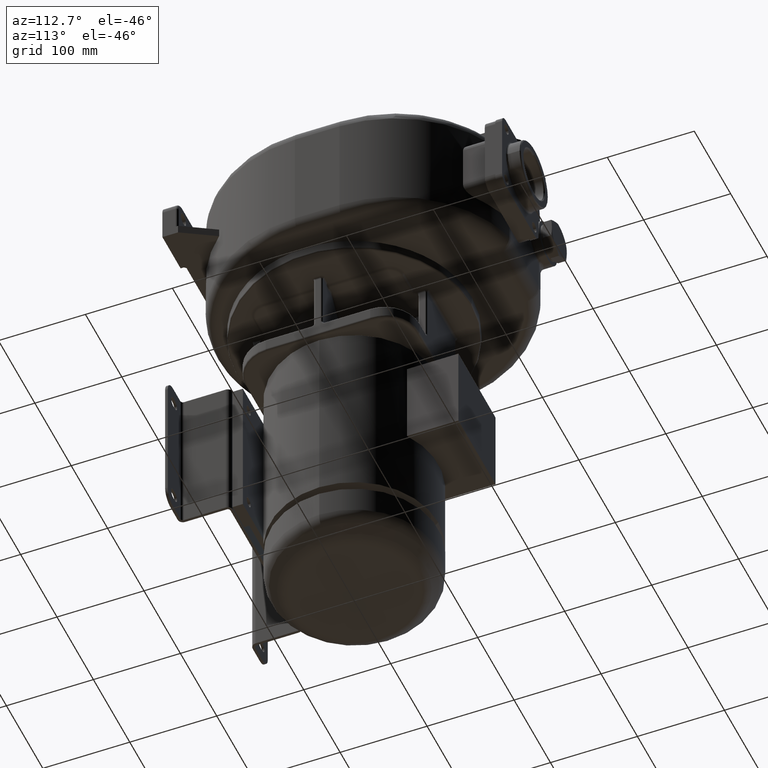
[diagram: clean part render]
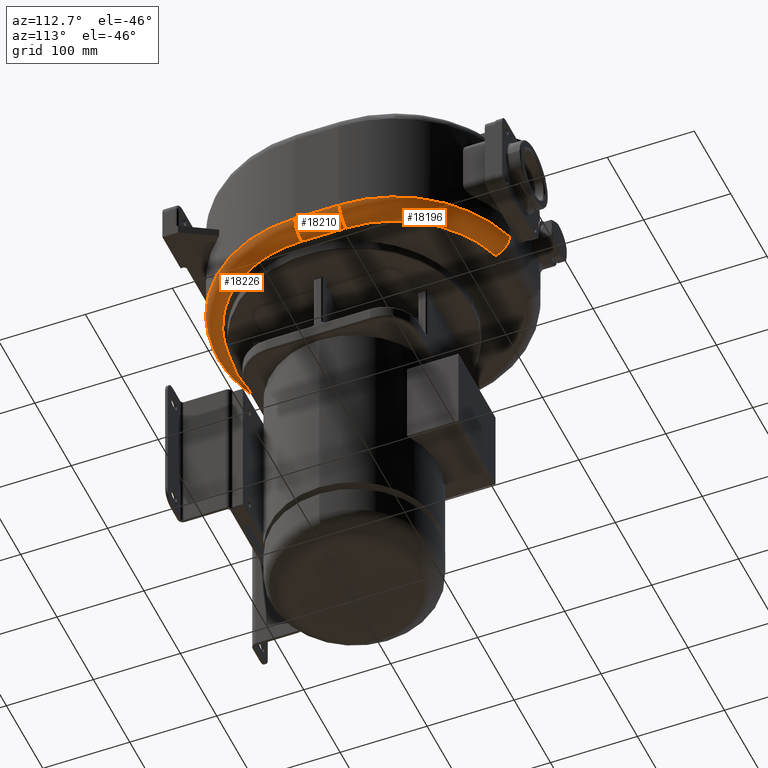
[diagram: same view with one multi-face feature highlighted, each face labeled with its STEP entity id]
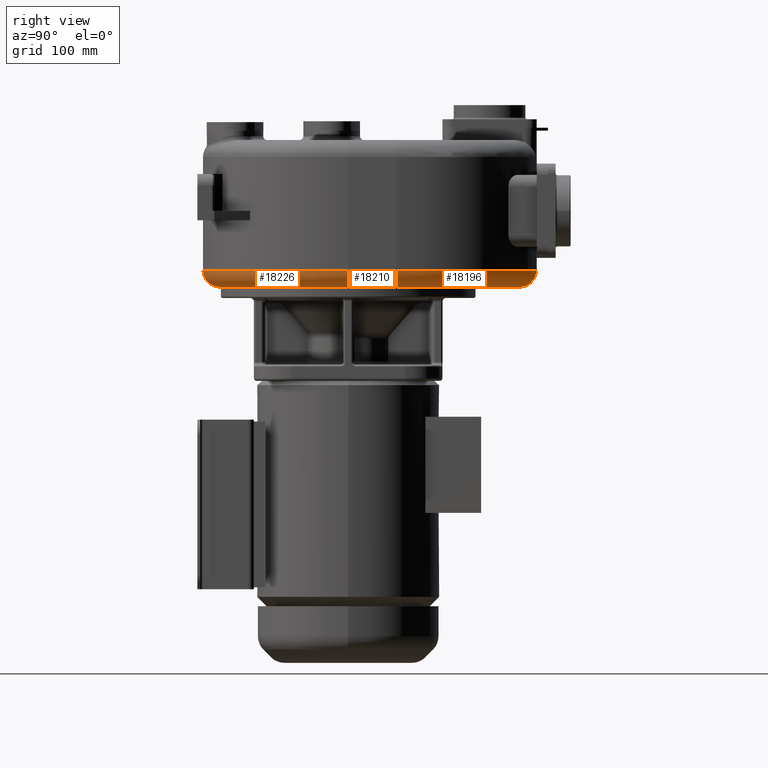
[diagram: same view with one multi-face feature highlighted, each face labeled with its STEP entity id]
A machine part, auxiliary view. The highlighted faces form ONE feature: a constant-radius fillet chain: 3 tangent blend faces with common blend radius 18 mm. The faces share edges in the B-rep.
A second angle (right view) of the same feature is appended — it is thin or edge-on in the first view.
Their STEP definitions:
[1] entity #18196 (Torus):
#1030=CARTESIAN_POINT('',(9.5E0,5.117894898810E1,9.75E1));
#1031=DIRECTION('',(0.E0,0.E0,-1.E0));
#1032=DIRECTION('',(2.733307433600E-1,9.619201134888E-1,0.E0));
#1033=AXIS2_PLACEMENT_3D('',#1030,#1031,#1032);
#3296=CARTESIAN_POINT('',(9.5E0,5.117894898810E1,1.155E2));
#3297=DIRECTION('',(0.E0,0.E0,-1.E0));
#3298=DIRECTION('',(2.676054405451E-1,9.635285819272E-1,0.E0));
#3299=AXIS2_PLACEMENT_3D('',#3296,#3297,#3298);
#4084=CARTESIAN_POINT('',(4.667327820096E1,1.820000000036E2,9.75E1));
#4085=CARTESIAN_POINT('',(4.671543761710E1,1.821808274144E2,9.750009735176E1));
#4086=CARTESIAN_POINT('',(4.680137787400E1,1.825418961660E2,9.750569035543E1));
#4087=CARTESIAN_POINT('',(4.692693445745E1,1.830830840623E2,9.753148332609E1));
#4088=CARTESIAN_POINT('',(4.705300940136E1,1.836225351283E2,9.757426582246E1));
#4089=CARTESIAN_POINT('',(4.717841427098E1,1.841600791267E2,9.763405279921E1));
#4090=CARTESIAN_POINT('',(4.730331152566E1,1.846952479121E2,9.771073932763E1));
#4091=CARTESIAN_POINT('',(4.742749808098E1,1.852276625488E2,9.780424854253E1));
#4092=CARTESIAN_POINT('',(4.755086569567E1,1.857569248279E2,9.791449182789E1));
#4093=CARTESIAN_POINT('',(4.767328275373E1,1.862826543403E2,9.804138226170E1));
#4094=CARTESIAN_POINT('',(4.779444285285E1,1.868044956417E2,9.818482379007E1));
#4095=CARTESIAN_POINT('',(4.791433773528E1,1.873219643325E2,9.834470108645E1));
#4096=CARTESIAN_POINT('',(4.803291111629E1,1.878346028367E2,9.852089122498E1));
#4097=CARTESIAN_POINT('',(4.815011361730E1,1.883419354098E2,9.871325640064E1));
#4098=CARTESIAN_POINT('',(4.826586686386E1,1.888433717216E2,9.892159556531E1));
#4099=CARTESIAN_POINT('',(4.838007546074E1,1.893383496340E2,9.914568621218E1));
#4100=CARTESIAN_POINT('',(4.849270513995E1,1.898262890991E2,9.938527623693E1));
#4101=CARTESIAN_POINT('',(4.860346986675E1,1.903067471374E2,9.964011475672E1));
#4102=CARTESIAN_POINT('',(4.871219984551E1,1.907793630309E2,9.990999180495E1));
#4103=CARTESIAN_POINT('',(4.881887273863E1,1.912437227015E2,1.001946834487E2));
#4104=CARTESIAN_POINT('',(4.892342755594E1,1.916994380617E2,1.004939659800E2));
#4105=CARTESIAN_POINT('',(4.902579122217E1,1.921460322372E2,1.008075450449E2));
#4106=CARTESIAN_POINT('',(4.912588270218E1,1.925830254769E2,1.011350955495E2));
#4107=CARTESIAN_POINT('',(4.922362005808E1,1.930099538809E2,1.014762749399E2));
#4108=CARTESIAN_POINT('',(4.931892195944E1,1.934263790409E2,1.018307311070E2));
#4109=CARTESIAN_POINT('',(4.941154167994E1,1.938319649827E2,1.021981328654E2));
#4110=CARTESIAN_POINT('',(4.950147126779E1,1.942263139689E2,1.025781343067E2));
#4111=CARTESIAN_POINT('',(4.958865917860E1,1.946090520346E2,1.029703791022E2));
#4112=CARTESIAN_POINT('',(4.967305903989E1,1.949798068626E2,1.033744921102E2));
#4113=CARTESIAN_POINT('',(4.975461890145E1,1.953382141328E2,1.037900799830E2));
#4114=CARTESIAN_POINT('',(4.983327182378E1,1.956839293454E2,1.042167403312E2));
#4115=CARTESIAN_POINT('',(4.990898760202E1,1.960166105611E2,1.046540581585E2));
#4116=CARTESIAN_POINT('',(4.998157204963E1,1.963360062114E2,1.051016491333E2));
#4117=CARTESIAN_POINT('',(5.005094718455E1,1.966418453866E2,1.055591286995E2));
#4118=CARTESIAN_POINT('',(5.011711164263E1,1.969338455935E2,1.060261081672E2));
#4119=CARTESIAN_POINT('',(5.018003440999E1,1.972117284439E2,1.065021735019E2));
#4120=CARTESIAN_POINT('',(5.023967641528E1,1.974751922109E2,1.069868373749E2));
#4121=CARTESIAN_POINT('',(5.029599255428E1,1.977239611969E2,1.074796092148E2));
#4122=CARTESIAN_POINT('',(5.034893443529E1,1.979577789046E2,1.079799876516E2));
#4123=CARTESIAN_POINT('',(5.039843994542E1,1.981764118851E2,1.084874612334E2));
#4124=CARTESIAN_POINT('',(5.044437658405E1,1.983796686678E2,1.090015158410E2));
#4125=CARTESIAN_POINT('',(5.048675557324E1,1.985673390617E2,1.095216354194E2));
#4126=CARTESIAN_POINT('',(5.052555620324E1,1.987392393623E2,1.100472910343E2));
#4127=CARTESIAN_POINT('',(5.056076486351E1,1.988952240469E2,1.105780152054E2));
#4128=CARTESIAN_POINT('',(5.059236031598E1,1.990351616171E2,1.111133407037E2));
#4129=CARTESIAN_POINT('',(5.062031146333E1,1.991589351347E2,1.116527984869E2));
#4130=CARTESIAN_POINT('',(5.064459312542E1,1.992664364798E2,1.121959156191E2));
#4131=CARTESIAN_POINT('',(5.066512009052E1,1.993575825002E2,1.127421908746E2));
#4132=CARTESIAN_POINT('',(5.068190629909E1,1.994322712988E2,1.132911041076E2));
#4133=CARTESIAN_POINT('',(5.069497398650E1,1.994904198672E2,1.138420448610E2));
#4134=CARTESIAN_POINT('',(5.070432876034E1,1.995319621657E2,1.143947162346E2));
#4135=CARTESIAN_POINT('',(5.070996774226E1,1.995568804583E2,1.149476272517E2));
#4136=CARTESIAN_POINT('',(5.071123595591E1,1.995623506653E2,1.153183642762E2));
#4137=CARTESIAN_POINT('',(5.071124632752E1,1.995623477910E2,1.155039844628E2));
#4139=CARTESIAN_POINT('',(1.455E2,5.117894898810E1,1.155E2));
#4140=DIRECTION('',(0.E0,-1.E0,0.E0));
#4141=DIRECTION('',(0.E0,0.E0,-1.E0));
#4142=AXIS2_PLACEMENT_3D('',#4139,#4140,#4141);
#13607=CARTESIAN_POINT('',(4.667319792734E1,1.820000000009E2,9.75E1));
#13609=VERTEX_POINT('',#13607);
#13610=CARTESIAN_POINT('',(1.455E2,5.117894898810E1,9.75E1));
#13611=VERTEX_POINT('',#13610);
#13612=CARTESIAN_POINT('',(5.071123784395E1,1.995623506049E2,1.155E2));
#13613=CARTESIAN_POINT('',(1.635E2,5.117894898810E1,1.155E2));
#13614=VERTEX_POINT('',#13612);
#13615=VERTEX_POINT('',#13613);
#18184=CARTESIAN_POINT('',(9.5E0,5.117894898810E1,1.155E2));
#18185=DIRECTION('',(0.E0,0.E0,-1.E0));
#18186=DIRECTION('',(-7.970156767184E-1,-6.039586170138E-1,0.E0));
#18187=AXIS2_PLACEMENT_3D('',#18184,#18185,#18186);
#18188=TOROIDAL_SURFACE('',#18187,1.36E2,1.8E1);
#18189=ORIENTED_EDGE('',*,*,#15656,.T.);
#18191=ORIENTED_EDGE('',*,*,#18190,.T.);
#18192=ORIENTED_EDGE('',*,*,#17179,.F.);
#18193=ORIENTED_EDGE('',*,*,#18178,.F.);
#18194=EDGE_LOOP('',(#18189,#18191,#18192,#18193));
#18195=FACE_OUTER_BOUND('',#18194,.F.);
#18196=ADVANCED_FACE('',(#18195),#18188,.T.);
#1034=CIRCLE('',#1033,1.36E2);
#3300=CIRCLE('',#3299,1.54E2);
#4138=B_SPLINE_CURVE_WITH_KNOTS('',3,(#4084,#4085,#4086,#4087,#4088,#4089,#4090,
#4091,#4092,#4093,#4094,#4095,#4096,#4097,#4098,#4099,#4100,#4101,#4102,#4103,
#4104,#4105,#4106,#4107,#4108,#4109,#4110,#4111,#4112,#4113,#4114,#4115,#4116,
#4117,#4118,#4119,#4120,#4121,#4122,#4123,#4124,#4125,#4126,#4127,#4128,#4129,
#4130,#4131,#4132,#4133,#4134,#4135,#4136,#4137),.UNSPECIFIED.,.F.,.F.,(4,1,1,1,
1,1,1,1,1,1,1,1,1,1,1,1,1,1,1,1,1,1,1,1,1,1,1,1,1,1,1,1,1,1,1,1,1,1,1,1,1,1,1,1,
1,1,1,1,1,1,1,4),(0.E0,1.960784313725E-2,3.921568627451E-2,5.882352941176E-2,
7.843137254902E-2,9.803921568627E-2,1.176470588235E-1,1.372549019608E-1,
1.568627450980E-1,1.764705882353E-1,1.960784313725E-1,2.156862745098E-1,
2.352941176471E-1,2.549019607843E-1,2.745098039216E-1,2.941176470588E-1,
3.137254901961E-1,3.333333333333E-1,3.529411764706E-1,3.725490196078E-1,
3.921568627451E-1,4.117647058824E-1,4.313725490196E-1,4.509803921569E-1,
4.705882352941E-1,4.901960784314E-1,5.098039215686E-1,5.294117647059E-1,
5.490196078431E-1,5.686274509804E-1,5.882352941176E-1,6.078431372549E-1,
6.274509803922E-1,6.470588235294E-1,6.666666666667E-1,6.862745098039E-1,
7.058823529412E-1,7.254901960784E-1,7.450980392157E-1,7.647058823529E-1,
7.843137254902E-1,8.039215686275E-1,8.235294117647E-1,8.431372549020E-1,
8.627450980392E-1,8.823529411765E-1,9.019607843137E-1,9.215686274510E-1,
9.411764705882E-1,9.607843137255E-1,9.803921568627E-1,1.E0),.UNSPECIFIED.);
#4143=CIRCLE('',#4142,1.8E1);
#15656=EDGE_CURVE('',#13609,#13611,#1034,.T.);
#17179=EDGE_CURVE('',#13614,#13615,#3300,.T.);
#18178=EDGE_CURVE('',#13609,#13614,#4138,.T.);
#18190=EDGE_CURVE('',#13611,#13615,#4143,.T.);
[2] entity #18210 (Cylinder):
#1026=DIRECTION('',(0.E0,-1.E0,0.E0));
#1027=VECTOR('',#1026,5.117894898810E1);
#1028=CARTESIAN_POINT('',(1.455E2,5.117894898810E1,9.75E1));
#1029=LINE('',#1028,#1027);
#4139=CARTESIAN_POINT('',(1.455E2,5.117894898810E1,1.155E2));
#4140=DIRECTION('',(0.E0,-1.E0,0.E0));
#4141=DIRECTION('',(0.E0,0.E0,-1.E0));
#4142=AXIS2_PLACEMENT_3D('',#4139,#4140,#4141);
#4233=CARTESIAN_POINT('',(1.455E2,0.E0,1.155E2));
#4234=DIRECTION('',(0.E0,-1.E0,0.E0));
#4235=DIRECTION('',(0.E0,0.E0,-1.E0));
#4236=AXIS2_PLACEMENT_3D('',#4233,#4234,#4235);
#4323=DIRECTION('',(0.E0,-1.E0,0.E0));
#4324=VECTOR('',#4323,5.117894898808E1);
#4325=CARTESIAN_POINT('',(1.635E2,5.117894898810E1,1.155E2));
#4326=LINE('',#4325,#4324);
#13610=CARTESIAN_POINT('',(1.455E2,5.117894898810E1,9.75E1));
#13611=VERTEX_POINT('',#13610);
#13613=CARTESIAN_POINT('',(1.635E2,5.117894898810E1,1.155E2));
#13615=VERTEX_POINT('',#13613);
#13616=CARTESIAN_POINT('',(1.455E2,2.202682480856E-13,9.75E1));
#13617=VERTEX_POINT('',#13616);
#13618=CARTESIAN_POINT('',(1.635E2,1.821831574489E-11,1.155E2));
#13619=VERTEX_POINT('',#13618);
#18197=CARTESIAN_POINT('',(1.455E2,5.194426914898E1,1.155E2));
#18198=DIRECTION('',(0.E0,-1.E0,0.E0));
#18199=DIRECTION('',(0.E0,0.E0,-1.E0));
#18200=AXIS2_PLACEMENT_3D('',#18197,#18198,#18199);
#18201=CYLINDRICAL_SURFACE('',#18200,1.8E1);
#18202=ORIENTED_EDGE('',*,*,#15654,.T.);
#18204=ORIENTED_EDGE('',*,*,#18203,.T.);
#18206=ORIENTED_EDGE('',*,*,#18205,.F.);
#18207=ORIENTED_EDGE('',*,*,#18190,.F.);
#18208=EDGE_LOOP('',(#18202,#18204,#18206,#18207));
#18209=FACE_OUTER_BOUND('',#18208,.F.);
#18210=ADVANCED_FACE('',(#18209),#18201,.T.);
#4143=CIRCLE('',#4142,1.8E1);
#4237=CIRCLE('',#4236,1.8E1);
#15654=EDGE_CURVE('',#13611,#13617,#1029,.T.);
#18190=EDGE_CURVE('',#13611,#13615,#4143,.T.);
#18203=EDGE_CURVE('',#13617,#13619,#4237,.T.);
#18205=EDGE_CURVE('',#13615,#13619,#4326,.T.);
[3] entity #18226 (Torus):
#1021=CARTESIAN_POINT('',(9.5E0,0.E0,9.75E1));
#1022=DIRECTION('',(0.E0,0.E0,-1.E0));
#1023=DIRECTION('',(1.E0,0.E0,0.E0));
#1024=AXIS2_PLACEMENT_3D('',#1021,#1022,#1023);
#1084=CARTESIAN_POINT('',(-1.265E2,0.E0,1.155E2));
#1085=DIRECTION('',(0.E0,1.E0,0.E0));
#1086=DIRECTION('',(-4.517300035023E-1,0.E0,-8.921546973120E-1));
#1087=AXIS2_PLACEMENT_3D('',#1084,#1085,#1086);
#1089=CARTESIAN_POINT('',(-1.346311400630E2,-1.745566654184E-12,
9.944121544838E1));
#4144=CARTESIAN_POINT('',(-9.513157894732E0,-1.346643970278E2,9.75E1));
#4145=CARTESIAN_POINT('',(-1.034368260024E1,-1.346057258955E2,9.75E1));
#4146=CARTESIAN_POINT('',(-1.200367530811E1,-1.344730136412E2,
9.750056103506E1));
#4147=CARTESIAN_POINT('',(-1.448941626426E1,-1.342279282868E2,
9.750307144849E1));
#4148=CARTESIAN_POINT('',(-1.697073486836E1,-1.339368327739E2,
9.750723614222E1));
#4149=CARTESIAN_POINT('',(-1.944673003451E1,-1.335997985758E2,
9.751303891303E1));
#4150=CARTESIAN_POINT('',(-2.191605400422E1,-1.332169940173E2,
9.752046010497E1));
#4151=CARTESIAN_POINT('',(-2.437729385571E1,-1.327886565246E2,
9.752947670555E1));
#4152=CARTESIAN_POINT('',(-2.682985489517E1,-1.323149244612E2,
9.754006614343E1));
#4153=CARTESIAN_POINT('',(-2.927403413428E1,-1.317957225290E2,
9.755221005269E1));
#4154=CARTESIAN_POINT('',(-3.170848285612E1,-1.312312992423E2,
9.756588168721E1));
#4155=CARTESIAN_POINT('',(-3.413203588786E1,-1.306219167872E2,
9.758105239083E1));
#4156=CARTESIAN_POINT('',(-3.654319545872E1,-1.299679765630E2,
9.759768858823E1));
#4157=CARTESIAN_POINT('',(-3.894181574171E1,-1.292695472948E2,
9.761576394861E1));
#4158=CARTESIAN_POINT('',(-4.132774229853E1,-1.285266491259E2,
9.763525271289E1));
#4159=CARTESIAN_POINT('',(-4.369969160712E1,-1.277396512520E2,
9.765611896441E1));
#4160=CARTESIAN_POINT('',(-4.605630249297E1,-1.269090135252E2,
9.767832312475E1));
#4161=CARTESIAN_POINT('',(-4.839680664355E1,-1.260350337132E2,
9.770182885615E1));
#4162=CARTESIAN_POINT('',(-5.072093352091E1,-1.251178165617E2,
9.772660411409E1));
#4163=CARTESIAN_POINT('',(-5.302782762477E1,-1.241576840908E2,
9.775261008368E1));
#4164=CARTESIAN_POINT('',(-5.531647837109E1,-1.231550585852E2,
9.777980427390E1));
#4165=CARTESIAN_POINT('',(-5.758638674275E1,-1.221101520751E2,
9.780814899071E1));
#4166=CARTESIAN_POINT('',(-5.983635059012E1,-1.210235194782E2,
9.783759636936E1));
#4167=CARTESIAN_POINT('',(-6.206604389441E1,-1.198953195940E2,
9.786810843556E1));
#4168=CARTESIAN_POINT('',(-6.427447973846E1,-1.187260404784E2,
9.789963746880E1));
#4169=CARTESIAN_POINT('',(-6.646096026139E1,-1.175160515792E2,
9.793213817714E1));
#4170=CARTESIAN_POINT('',(-6.862472274912E1,-1.162657688760E2,
9.796556324554E1));
#4171=CARTESIAN_POINT('',(-7.005151190183E1,-1.154057167849E2,
9.798842938162E1));
#4172=CARTESIAN_POINT('',(-7.076086153430E1,-1.149691283559E2,9.8E1));
#4174=CARTESIAN_POINT('',(-7.076086153430E1,-1.149691283559E2,9.8E1));
#4175=CARTESIAN_POINT('',(-7.146611104400E1,-1.145350634585E2,
9.801150373886E1));
#4176=CARTESIAN_POINT('',(-7.286844362420E1,-1.136539092212E2,
9.803474970265E1));
#4177=CARTESIAN_POINT('',(-7.494675450134E1,-1.122935317548E2,
9.807026869722E1));
#4178=CARTESIAN_POINT('',(-7.699890391057E1,-1.108951483404E2,
9.810636636010E1));
#4179=CARTESIAN_POINT('',(-7.902366601662E1,-1.094596397109E2,
9.814296526412E1));
#4180=CARTESIAN_POINT('',(-8.102057574517E1,-1.079874020295E2,
9.818000068276E1));
#4181=CARTESIAN_POINT('',(-8.298938956116E1,-1.064786522533E2,
9.821741235824E1));
#4182=CARTESIAN_POINT('',(-8.492978228279E1,-1.049336461371E2,
9.825513906455E1));
#4183=CARTESIAN_POINT('',(-8.684120049907E1,-1.033528094297E2,
9.829311564356E1));
#4184=CARTESIAN_POINT('',(-8.872261302480E1,-1.017369984040E2,
9.833126745605E1));
#4185=CARTESIAN_POINT('',(-9.057340416681E1,-1.000867771481E2,
9.836952816613E1));
#4186=CARTESIAN_POINT('',(-9.239365829040E1,-9.840206479462E1,
9.840784701354E1));
#4187=CARTESIAN_POINT('',(-9.418286761769E1,-9.668327486685E1,
9.844616228878E1));
#4188=CARTESIAN_POINT('',(-9.594003169215E1,-9.493133298138E1,
9.848440235228E1));
#4189=CARTESIAN_POINT('',(-9.766422534874E1,-9.314717303982E1,
9.852249761412E1));
#4190=CARTESIAN_POINT('',(-9.935498823124E1,-9.133130389169E1,
9.856038963920E1));
#4191=CARTESIAN_POINT('',(-1.010123948654E2,-8.948362788127E1,
9.859803368956E1));
#4192=CARTESIAN_POINT('',(-1.026360426490E2,-8.760451484208E1,
9.863537612908E1));
#4193=CARTESIAN_POINT('',(-1.042250100862E2,-8.569496855544E1,
9.867235267536E1));
#4194=CARTESIAN_POINT('',(-1.057784742807E2,-8.375596566228E1,
9.870890241206E1));
#4195=CARTESIAN_POINT('',(-1.072960406873E2,-8.178800224305E1,
9.874497593298E1));
#4196=CARTESIAN_POINT('',(-1.087776857820E2,-7.979105814958E1,
9.878053457891E1));
#4197=CARTESIAN_POINT('',(-1.102229610168E2,-7.776562893003E1,
9.881553147641E1));
#4198=CARTESIAN_POINT('',(-1.116309746015E2,-7.571288383762E1,
9.884991055265E1));
#4199=CARTESIAN_POINT('',(-1.130010581591E2,-7.363377207875E1,
9.888362261522E1));
#4200=CARTESIAN_POINT('',(-1.143328937950E2,-7.152875141969E1,
9.891662880142E1));
#4201=CARTESIAN_POINT('',(-1.156263070449E2,-6.939802251021E1,
9.894889569778E1));
#4202=CARTESIAN_POINT('',(-1.168809196207E2,-6.724207792384E1,
9.898038667334E1));
#4203=CARTESIAN_POINT('',(-1.180959266832E2,-6.506219575722E1,
9.901105601181E1));
#4204=CARTESIAN_POINT('',(-1.192707591172E2,-6.285936001923E1,
9.904086544199E1));
#4205=CARTESIAN_POINT('',(-1.204052084273E2,-6.063390237488E1,
9.906978751605E1));
#4206=CARTESIAN_POINT('',(-1.214988765646E2,-5.838650588304E1,
9.909779163781E1));
#4207=CARTESIAN_POINT('',(-1.225513802588E2,-5.611784649687E1,
9.912484915389E1));
#4208=CARTESIAN_POINT('',(-1.235621762231E2,-5.382900433220E1,
9.915092878260E1));
#4209=CARTESIAN_POINT('',(-1.245310254784E2,-5.152042718602E1,
9.917600853093E1));
#4210=CARTESIAN_POINT('',(-1.254575268539E2,-4.919293702132E1,
9.920006363522E1));
#4211=CARTESIAN_POINT('',(-1.263412848166E2,-4.684741898657E1,
9.922307078163E1));
#4212=CARTESIAN_POINT('',(-1.271821033670E2,-4.448423154748E1,
9.924501312586E1));
#4213=CARTESIAN_POINT('',(-1.279794011115E2,-4.210485496295E1,
9.926586495275E1));
#4214=CARTESIAN_POINT('',(-1.287328298188E2,-3.971028203394E1,
9.928560771302E1));
#4215=CARTESIAN_POINT('',(-1.294422662146E2,-3.730078107149E1,
9.930422981646E1));
#4216=CARTESIAN_POINT('',(-1.301073194154E2,-3.487754120796E1,
9.932171362744E1));
#4217=CARTESIAN_POINT('',(-1.307278535597E2,-3.244088394524E1,
9.933804910521E1));
#4218=CARTESIAN_POINT('',(-1.313034140534E2,-2.999242803160E1,
9.935321864145E1));
#4219=CARTESIAN_POINT('',(-1.318338081697E2,-2.753294603958E1,
9.936721226106E1));
#4220=CARTESIAN_POINT('',(-1.323188829758E2,-2.506298495600E1,
9.938002172903E1));
#4221=CARTESIAN_POINT('',(-1.327583716366E2,-2.258377124198E1,
9.939163641453E1));
#4222=CARTESIAN_POINT('',(-1.331521755319E2,-2.009565222263E1,
9.940205068091E1));
#4223=CARTESIAN_POINT('',(-1.334999876071E2,-1.760042346325E1,
9.941125386875E1));
#4224=CARTESIAN_POINT('',(-1.338017543442E2,-1.509841403675E1,
9.941924245800E1));
#4225=CARTESIAN_POINT('',(-1.340573138715E2,-1.259073691918E1,
9.942601044880E1));
#4226=CARTESIAN_POINT('',(-1.342665569211E2,-1.007840228248E1,
9.943155357336E1));
#4227=CARTESIAN_POINT('',(-1.344294162219E2,-7.561903874598E0,
9.943586897986E1));
#4228=CARTESIAN_POINT('',(-1.345457716278E2,-5.043062456341E0,
9.943895268610E1));
#4229=CARTESIAN_POINT('',(-1.346156192910E2,-2.521902476328E0,
9.944080403782E1));
#4230=CARTESIAN_POINT('',(-1.346311400630E2,-8.406409425015E-1,
9.944121544838E1));
#4231=CARTESIAN_POINT('',(-1.346311400630E2,-1.745566654184E-12,
9.944121544838E1));
#4233=CARTESIAN_POINT('',(1.455E2,0.E0,1.155E2));
#4234=DIRECTION('',(0.E0,-1.E0,0.E0));
#4235=DIRECTION('',(0.E0,0.E0,-1.E0));
#4236=AXIS2_PLACEMENT_3D('',#4233,#4234,#4235);
#4238=CARTESIAN_POINT('',(9.5E0,0.E0,1.155E2));
#4239=DIRECTION('',(0.E0,0.E0,-1.E0));
#4240=DIRECTION('',(1.E0,0.E0,0.E0));
#4241=AXIS2_PLACEMENT_3D('',#4238,#4239,#4240);
#13616=CARTESIAN_POINT('',(1.455E2,2.202682480856E-13,9.75E1));
#13617=VERTEX_POINT('',#13616);
#13618=CARTESIAN_POINT('',(1.635E2,1.821831574489E-11,1.155E2));
#13619=VERTEX_POINT('',#13618);
#13620=CARTESIAN_POINT('',(-1.445E2,-3.771912141374E-14,1.155E2));
#13621=VERTEX_POINT('',#13620);
#14313=CARTESIAN_POINT('',(-9.513157894738E0,-1.346643970278E2,9.75E1));
#14315=VERTEX_POINT('',#14313);
#14321=VERTEX_POINT('',#1089);
#14322=VERTEX_POINT('',#4172);
#18211=CARTESIAN_POINT('',(9.5E0,0.E0,1.155E2));
#18212=DIRECTION('',(0.E0,0.E0,-1.E0));
#18213=DIRECTION('',(9.999876515065E-1,4.969590978513E-3,0.E0));
#18214=AXIS2_PLACEMENT_3D('',#18211,#18212,#18213);
#18215=TOROIDAL_SURFACE('',#18214,1.36E2,1.8E1);
#18216=ORIENTED_EDGE('',*,*,#15685,.T.);
#18218=ORIENTED_EDGE('',*,*,#18217,.T.);
#18219=ORIENTED_EDGE('',*,*,#15713,.T.);
#18221=ORIENTED_EDGE('',*,*,#18220,.F.);
#18222=ORIENTED_EDGE('',*,*,#18203,.F.);
#18223=ORIENTED_EDGE('',*,*,#15652,.T.);
#18224=EDGE_LOOP('',(#18216,#18218,#18219,#18221,#18222,#18223));
#18225=FACE_OUTER_BOUND('',#18224,.F.);
#18226=ADVANCED_FACE('',(#18225),#18215,.T.);
#1025=CIRCLE('',#1024,1.36E2);
#1088=CIRCLE('',#1087,1.8E1);
#4173=B_SPLINE_CURVE_WITH_KNOTS('',3,(#4144,#4145,#4146,#4147,#4148,#4149,#4150,
#4151,#4152,#4153,#4154,#4155,#4156,#4157,#4158,#4159,#4160,#4161,#4162,#4163,
#4164,#4165,#4166,#4167,#4168,#4169,#4170,#4171,#4172),.UNSPECIFIED.,.F.,.F.,(4,
1,1,1,1,1,1,1,1,1,1,1,1,1,1,1,1,1,1,1,1,1,1,1,1,1,4),(0.E0,3.846153846154E-2,
7.692307692308E-2,1.153846153846E-1,1.538461538462E-1,1.923076923077E-1,
2.307692307692E-1,2.692307692308E-1,3.076923076923E-1,3.461538461538E-1,
3.846153846154E-1,4.230769230769E-1,4.615384615385E-1,5.E-1,5.384615384615E-1,
5.769230769231E-1,6.153846153846E-1,6.538461538462E-1,6.923076923077E-1,
7.307692307692E-1,7.692307692308E-1,8.076923076923E-1,8.461538461538E-1,
8.846153846154E-1,9.230769230769E-1,9.615384615385E-1,1.E0),.UNSPECIFIED.);
#4232=B_SPLINE_CURVE_WITH_KNOTS('',3,(#4174,#4175,#4176,#4177,#4178,#4179,#4180,
#4181,#4182,#4183,#4184,#4185,#4186,#4187,#4188,#4189,#4190,#4191,#4192,#4193,
#4194,#4195,#4196,#4197,#4198,#4199,#4200,#4201,#4202,#4203,#4204,#4205,#4206,
#4207,#4208,#4209,#4210,#4211,#4212,#4213,#4214,#4215,#4216,#4217,#4218,#4219,
#4220,#4221,#4222,#4223,#4224,#4225,#4226,#4227,#4228,#4229,#4230,#4231),
.UNSPECIFIED.,.F.,.F.,(4,1,1,1,1,1,1,1,1,1,1,1,1,1,1,1,1,1,1,1,1,1,1,1,1,1,1,1,
1,1,1,1,1,1,1,1,1,1,1,1,1,1,1,1,1,1,1,1,1,1,1,1,1,1,1,4),(0.E0,
1.818181818182E-2,3.636363636364E-2,5.454545454545E-2,7.272727272727E-2,
9.090909090909E-2,1.090909090909E-1,1.272727272727E-1,1.454545454545E-1,
1.636363636364E-1,1.818181818182E-1,2.E-1,2.181818181818E-1,2.363636363636E-1,
2.545454545455E-1,2.727272727273E-1,2.909090909091E-1,3.090909090909E-1,
3.272727272727E-1,3.454545454545E-1,3.636363636364E-1,3.818181818182E-1,4.E-1,
4.181818181818E-1,4.363636363636E-1,4.545454545455E-1,4.727272727273E-1,
4.909090909091E-1,5.090909090909E-1,5.272727272727E-1,5.454545454545E-1,
5.636363636364E-1,5.818181818182E-1,6.E-1,6.181818181818E-1,6.363636363636E-1,
6.545454545455E-1,6.727272727273E-1,6.909090909091E-1,7.090909090909E-1,
7.272727272727E-1,7.454545454545E-1,7.636363636364E-1,7.818181818182E-1,8.E-1,
8.181818181818E-1,8.363636363636E-1,8.545454545455E-1,8.727272727273E-1,
8.909090909091E-1,9.090909090909E-1,9.272727272727E-1,9.454545454545E-1,
9.636363636364E-1,9.818181818182E-1,1.E0),.UNSPECIFIED.);
#4237=CIRCLE('',#4236,1.8E1);
#4242=CIRCLE('',#4241,1.54E2);
#15652=EDGE_CURVE('',#13617,#14315,#1025,.T.);
#15685=EDGE_CURVE('',#14315,#14322,#4173,.T.);
#15713=EDGE_CURVE('',#14321,#13621,#1088,.T.);
#18203=EDGE_CURVE('',#13617,#13619,#4237,.T.);
#18217=EDGE_CURVE('',#14322,#14321,#4232,.T.);
#18220=EDGE_CURVE('',#13619,#13621,#4242,.T.);